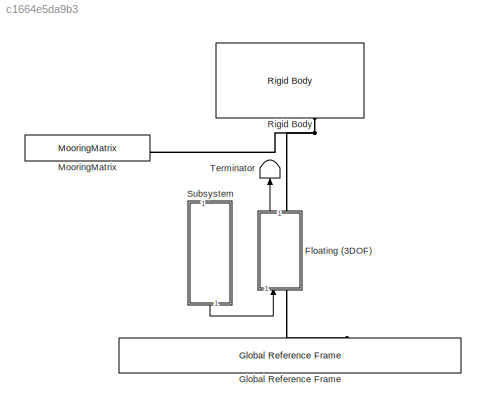
MODEL slx_c1664e5da9b3
KIND model
CONFIG AbsTol = auto
CONFIG EnableMultiTasking = off
CONFIG FixedStep = 0.01
CONFIG MaxStep = 0.01
CONFIG MinStep = auto
CONFIG RelTol = 1e-3
CONFIG SampleTimeConstraint = Unconstrained
CONFIG SolverName = ode45
CONFIG StartTime = 0
CONFIG StopTime = 600
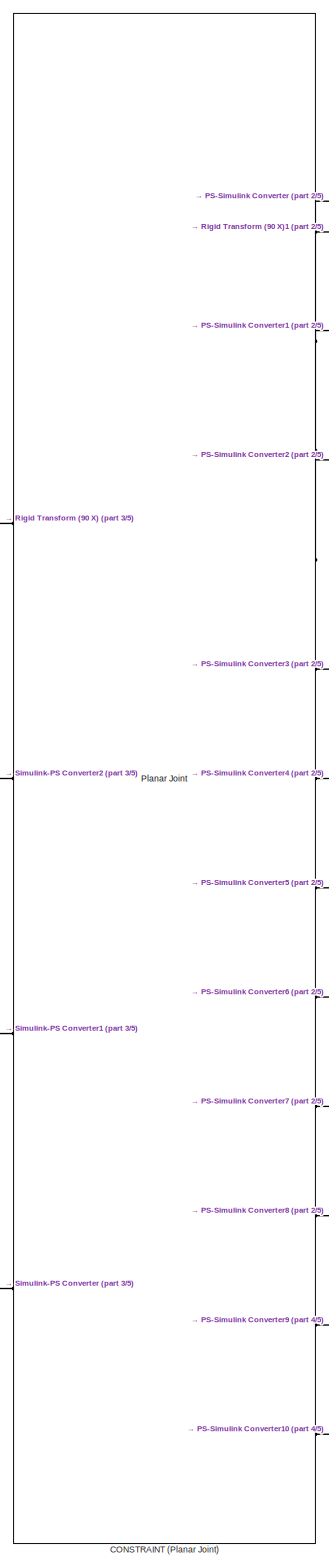
[diagram: Floating (3DOF) - part 1/5, center side, full height]
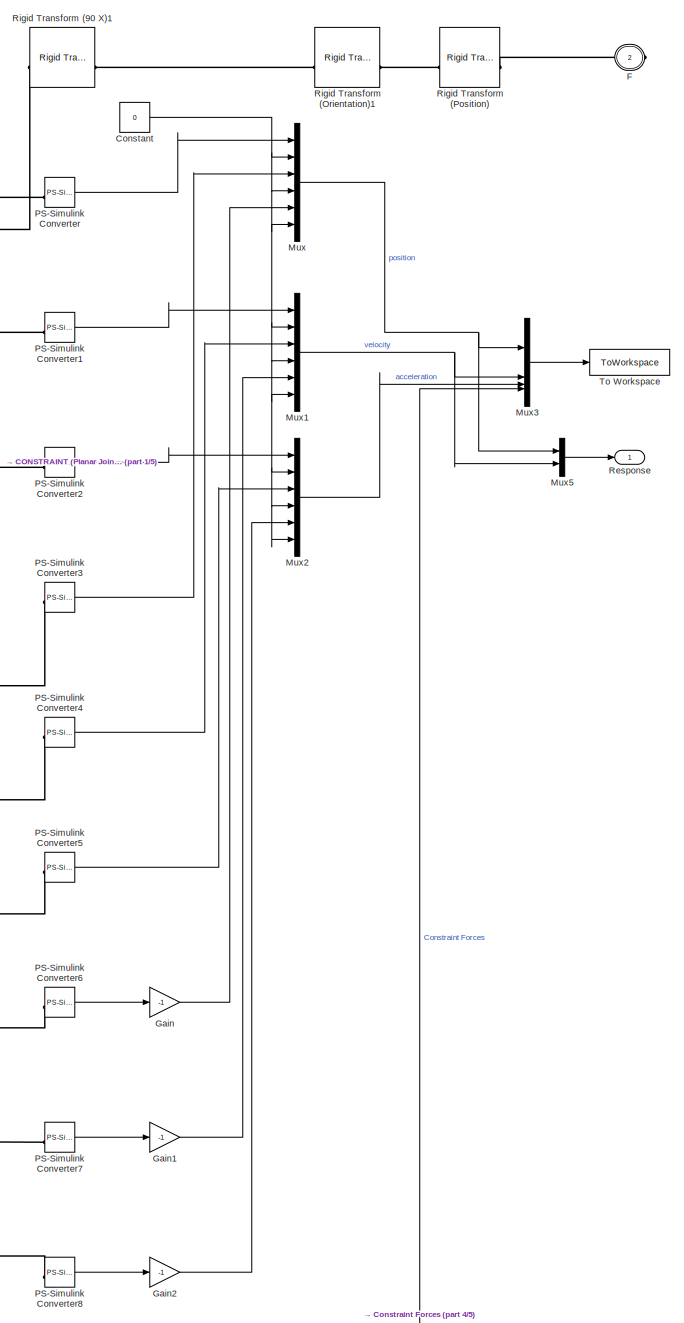
[diagram: Floating (3DOF) - part 2/5, right side, full height]
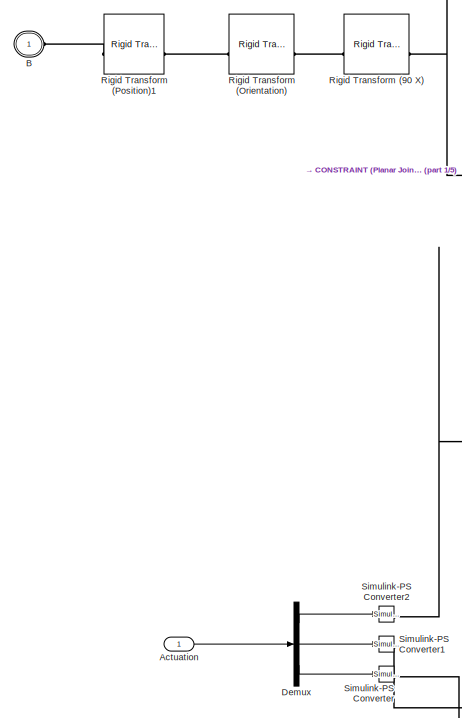
[diagram: Floating (3DOF) - part 3/5, middle left region]
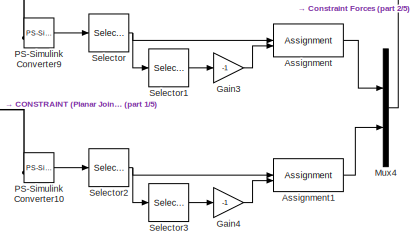
[diagram: Floating (3DOF) - part 4/5, bottom right region]
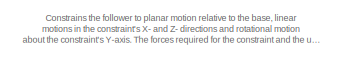
[diagram: Floating (3DOF) - part 5/5, bottom left region]
BLOCK [SubSystem] Floating (3DOF)
  AncestorBlock = WECSim_Lib_Constraints/Floating (3DOF)
  AttributesFormatString = %<constraint>
  LibrarySourceBlock = WECSim_Lib_Constraints/Floating (3DOF)
  NameLocation = right
BLOCK [Inport] Floating (3DOF)/Actuation
BLOCK [Assignment] Floating (3DOF)/Assignment
  DiagnosticForDimensions = Warning
  IndexOptions = Index vector (dialog)
  Indices = 2
  OutputSizes = 1
BLOCK [Assignment] Floating (3DOF)/Assignment1
  DiagnosticForDimensions = Warning
  IndexOptions = Index vector (dialog)
  Indices = 2
  OutputSizes = 1
BLOCK [PMIOPort] Floating (3DOF)/B
  Side = Left
BLOCK [Reference] Floating (3DOF)/CONSTRAINT (Planar Joint)  REF=sm_lib/Joints/Planar Joint
  SourceBlock = sm_lib/Joints/Planar Joint
  SourceType = Planar Joint
BLOCK [Constant] Floating (3DOF)/Constant
  Value = 0
BLOCK [Demux] Floating (3DOF)/Demux
  Outputs = 3
BLOCK [PMIOPort] Floating (3DOF)/F
  Port = 2
  Side = Right
BLOCK [Gain] Floating (3DOF)/Gain
  Gain = -1
BLOCK [Gain] Floating (3DOF)/Gain1
  Gain = -1
BLOCK [Gain] Floating (3DOF)/Gain2
  Gain = -1
BLOCK [Gain] Floating (3DOF)/Gain3
  Gain = -1
BLOCK [Gain] Floating (3DOF)/Gain4
  Gain = -1
BLOCK [Mux] Floating (3DOF)/Mux
  DisplayOption = bar
  Inputs = 6
BLOCK [Mux] Floating (3DOF)/Mux1
  DisplayOption = bar
  Inputs = 6
BLOCK [Mux] Floating (3DOF)/Mux2
  DisplayOption = bar
  Inputs = 6
BLOCK [Mux] Floating (3DOF)/Mux3
  DisplayOption = bar
BLOCK [Mux] Floating (3DOF)/Mux4
  DisplayOption = bar
  Inputs = 2
BLOCK [Mux] Floating (3DOF)/Mux5
  DisplayOption = bar
  Inputs = 2
BLOCK [Reference] Floating (3DOF)/PS-Simulink Converter  REF=nesl_utility/PS-Simulink
Converter
  SourceBlock = nesl_utility/PS-Simulink\nConverter
  SourceType = PS-Simulink\nConverter
BLOCK [Reference] Floating (3DOF)/PS-Simulink Converter1  REF=nesl_utility/PS-Simulink
Converter
  SourceBlock = nesl_utility/PS-Simulink\nConverter
  SourceType = PS-Simulink\nConverter
BLOCK [Reference] Floating (3DOF)/PS-Simulink Converter10  REF=nesl_utility/PS-Simulink
Converter
  SourceBlock = nesl_utility/PS-Simulink\nConverter
  SourceType = PS-Simulink\nConverter
BLOCK [Reference] Floating (3DOF)/PS-Simulink Converter2  REF=nesl_utility/PS-Simulink
Converter
  SourceBlock = nesl_utility/PS-Simulink\nConverter
  SourceType = PS-Simulink\nConverter
BLOCK [Reference] Floating (3DOF)/PS-Simulink Converter3  REF=nesl_utility/PS-Simulink
Converter
  SourceBlock = nesl_utility/PS-Simulink\nConverter
  SourceType = PS-Simulink\nConverter
BLOCK [Reference] Floating (3DOF)/PS-Simulink Converter4  REF=nesl_utility/PS-Simulink
Converter
  SourceBlock = nesl_utility/PS-Simulink\nConverter
  SourceType = PS-Simulink\nConverter
BLOCK [Reference] Floating (3DOF)/PS-Simulink Converter5  REF=nesl_utility/PS-Simulink
Converter
  SourceBlock = nesl_utility/PS-Simulink\nConverter
  SourceType = PS-Simulink\nConverter
BLOCK [Reference] Floating (3DOF)/PS-Simulink Converter6  REF=nesl_utility/PS-Simulink
Converter
  SourceBlock = nesl_utility/PS-Simulink\nConverter
  SourceType = PS-Simulink\nConverter
BLOCK [Reference] Floating (3DOF)/PS-Simulink Converter7  REF=nesl_utility/PS-Simulink
Converter
  SourceBlock = nesl_utility/PS-Simulink\nConverter
  SourceType = PS-Simulink\nConverter
BLOCK [Reference] Floating (3DOF)/PS-Simulink Converter8  REF=nesl_utility/PS-Simulink
Converter
  SourceBlock = nesl_utility/PS-Simulink\nConverter
  SourceType = PS-Simulink\nConverter
BLOCK [Reference] Floating (3DOF)/PS-Simulink Converter9  REF=nesl_utility/PS-Simulink
Converter
  SourceBlock = nesl_utility/PS-Simulink\nConverter
  SourceType = PS-Simulink\nConverter
BLOCK [Outport] Floating (3DOF)/Response
BLOCK [Reference] Floating (3DOF)/Rigid Transform (90 X)  REF=sm_lib/Frames and
Transforms/Rigid
Transform
  SourceBlock = sm_lib/Frames and\nTransforms/Rigid\nTransform
  SourceType = Rigid\nTransform
BLOCK [Reference] Floating (3DOF)/Rigid Transform (90 X)1  REF=sm_lib/Frames and
Transforms/Rigid
Transform
  SourceBlock = sm_lib/Frames and\nTransforms/Rigid\nTransform
  SourceType = Rigid\nTransform
BLOCK [Reference] Floating (3DOF)/Rigid Transform (Orientation)  REF=sm_lib/Frames and
Transforms/Rigid
Transform
  SourceBlock = sm_lib/Frames and\nTransforms/Rigid\nTransform
  SourceType = Rigid\nTransform
BLOCK [Reference] Floating (3DOF)/Rigid Transform (Orientation)1  REF=sm_lib/Frames and
Transforms/Rigid
Transform
  SourceBlock = sm_lib/Frames and\nTransforms/Rigid\nTransform
  SourceType = Rigid\nTransform
BLOCK [Reference] Floating (3DOF)/Rigid Transform (Position)  REF=sm_lib/Frames and
Transforms/Rigid
Transform
  SourceBlock = sm_lib/Frames and\nTransforms/Rigid\nTransform
  SourceType = Rigid\nTransform
BLOCK [Reference] Floating (3DOF)/Rigid Transform (Position)1  REF=sm_lib/Frames and
Transforms/Rigid
Transform
  SourceBlock = sm_lib/Frames and\nTransforms/Rigid\nTransform
  SourceType = Rigid\nTransform
BLOCK [Selector] Floating (3DOF)/Selector
  IndexOptions = Index vector (dialog)
  Indices = [1 3 2]
  InputPortWidth = 3
  OutputSizes = 1
BLOCK [Selector] Floating (3DOF)/Selector1
  IndexOptions = Index vector (dialog)
  Indices = [2]
  InputPortWidth = 3
  OutputSizes = 1
BLOCK [Selector] Floating (3DOF)/Selector2
  IndexOptions = Index vector (dialog)
  Indices = [1 3 2]
  InputPortWidth = 3
  OutputSizes = 1
BLOCK [Selector] Floating (3DOF)/Selector3
  IndexOptions = Index vector (dialog)
  Indices = [2]
  InputPortWidth = 3
  OutputSizes = 1
BLOCK [Reference] Floating (3DOF)/Simulink-PS Converter  REF=nesl_utility/Simulink-PS
Converter
  SourceBlock = nesl_utility/Simulink-PS\nConverter
  SourceType = Simulink-PS\nConverter
BLOCK [Reference] Floating (3DOF)/Simulink-PS Converter1  REF=nesl_utility/Simulink-PS
Converter
  SourceBlock = nesl_utility/Simulink-PS\nConverter
  SourceType = Simulink-PS\nConverter
BLOCK [Reference] Floating (3DOF)/Simulink-PS Converter2  REF=nesl_utility/Simulink-PS
Converter
  SourceBlock = nesl_utility/Simulink-PS\nConverter
  SourceType = Simulink-PS\nConverter
BLOCK [ToWorkspace] Floating (3DOF)/To Workspace
  FixptAsFi = on
  MaxDataPoints = inf
  SampleTime = simu.dtOut
  SaveFormat = Structure With Time
  VariableName = constraint1_out
BLOCK [Reference] Global Reference Frame  REF=WECSim_Lib_Frames/Global Reference Frame
  NameLocation = right
  SourceBlock = WECSim_Lib_Frames/Global Reference Frame
  SourceType = Frames
BLOCK [Reference] MooringMatrix  REF=WECSim_Lib_Moorings/MooringMatrix
  AttributesFormatString = %<mooring>
  SourceBlock = WECSim_Lib_Moorings/MooringMatrix
  SourceType = Mooring Matrix
BLOCK [Reference] Rigid Body  REF=WECSim_Lib_Body_Elements/Rigid Body
  AttributesFormatString = %<body>
  NameLocation = left
  SourceBlock = WECSim_Lib_Body_Elements/Rigid Body
  SourceType = Rigid Body
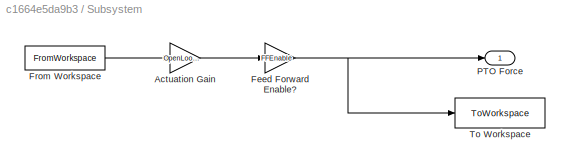
BLOCK [SubSystem] Subsystem
  NameLocation = left
BLOCK [Gain] Subsystem/Actuation Gain
  Gain = OpenLoopGains
BLOCK [Gain] Subsystem/Feed Forward Enable?
  Gain = FFEnable
BLOCK [FromWorkspace] Subsystem/From Workspace
  VariableName = multisine
BLOCK [Outport] Subsystem/PTO Force
BLOCK [ToWorkspace] Subsystem/To Workspace
  FixptAsFi = on
  MaxDataPoints = inf
  SampleTime = -1
  SaveFormat = Timeseries
  VariableName = F_actuation
BLOCK [Terminator] Terminator
  NameLocation = right
ANNOTATION Floating (3DOF): Constrains the follower to planar motion relative to the base, linear motions in the constraint's X- and Z- directions and rotational motion about the constraint's Y-axis. The forces required for the constraint and the updated response are output of the joint, converted to Simulink, assigned to the correct dimension for wecSim, and output.
LINE Floating (3DOF):1 -> Terminator:1
LINE Subsystem/Actuation Gain:1 -> Subsystem/Feed Forward Enable?:1
NET Subsystem/Feed Forward Enable?:1 -> Subsystem/PTO Force:1, Subsystem/To Workspace:1
LINE Subsystem/From Workspace:1 -> Subsystem/Actuation Gain:1
LINE Subsystem:1 -> Floating (3DOF):1
PLINE Floating (3DOF):LConn1 -- Global Reference Frame:RConn1
PNET net1: Floating (3DOF):RConn1 -- MooringMatrix:LConn1 -- Rigid Body:RConn1
note: NET lines group one-source signal fan-out (src -> all destinations, sorted); 1:1 wires keep LINE; PNET lines group multi-terminal physical nets as a canonical sorted terminal list (undirected conserving connections); 2-terminal nets keep the pairwise PLINE form
